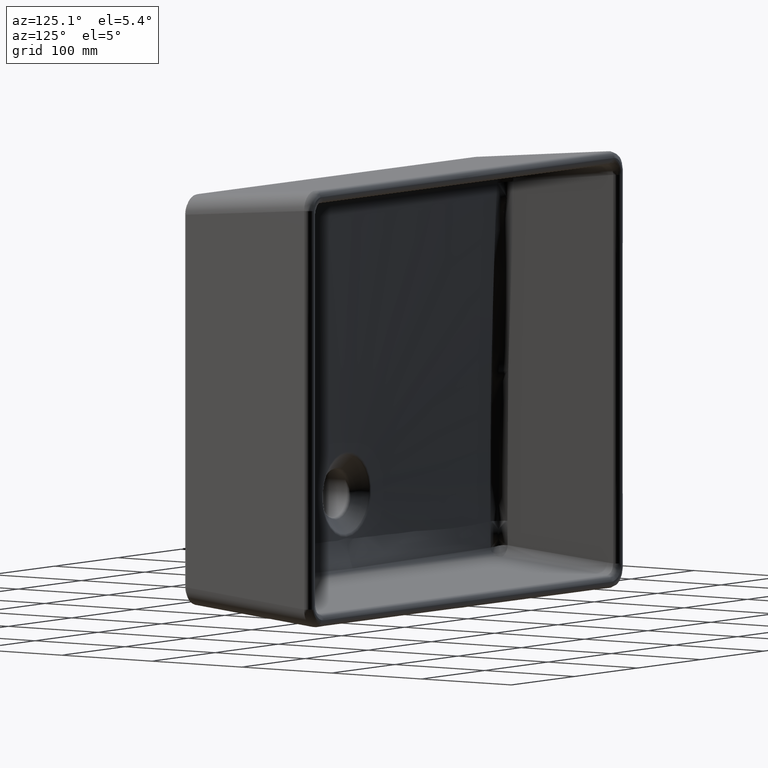
[diagram: clean part render]
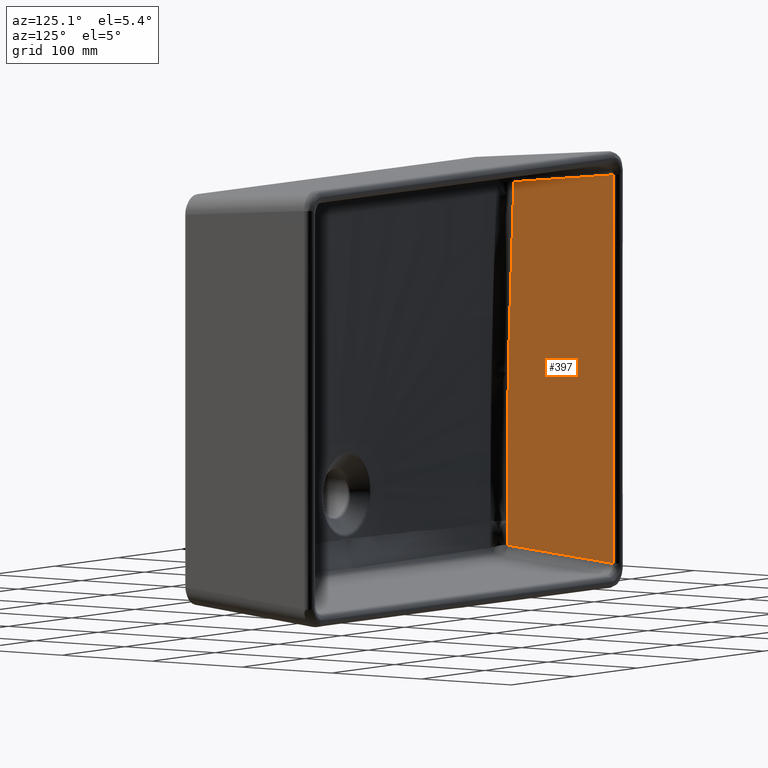
[diagram: same view with one face highlighted and labeled with its STEP entity id]
A machine part, auxiliary view. The second image highlights one B-rep face of the part: STEP entity #397.
In plain terms, the highlighted face is a freeform B-spline surface patch.
Its self-contained STEP definition (entity closure, byte-faithful):
#397=ADVANCED_FACE('',(#541),#514,.F.);
#514=B_SPLINE_SURFACE_WITH_KNOTS('',1,3,((#4361,#4362,#4363,#4364),(#4365,
#4366,#4367,#4368)),.UNSPECIFIED.,.F.,.F.,.F.,(2,2),(4,4),(0.,1.),(0.,1.),
 .UNSPECIFIED.);
#541=FACE_OUTER_BOUND('',#688,.T.);
#688=EDGE_LOOP('',(#1132,#1133,#1134,#1135,#1136));
#880=B_SPLINE_CURVE_WITH_KNOTS('',3,(#4322,#4323,#4324,#4325,#4326,#4327),
 .UNSPECIFIED.,.F.,.F.,(4,2,4),(0.,0.5,1.),.UNSPECIFIED.);
#881=B_SPLINE_CURVE_WITH_KNOTS('',3,(#4330,#4331,#4332,#4333),
 .UNSPECIFIED.,.F.,.F.,(4,4),(0.,1.),.UNSPECIFIED.);
#882=B_SPLINE_CURVE_WITH_KNOTS('',3,(#4335,#4336,#4337,#4338,#4339,#4340,
#4341,#4342,#4343,#4344),.UNSPECIFIED.,.F.,.F.,(4,3,3,4),(0.,0.13280315658952,
0.496102962813358,1.),.UNSPECIFIED.);
#883=B_SPLINE_CURVE_WITH_KNOTS('',3,(#4346,#4347,#4348,#4349),
 .UNSPECIFIED.,.F.,.F.,(4,4),(0.,1.),.UNSPECIFIED.);
#884=B_SPLINE_CURVE_WITH_KNOTS('',3,(#4351,#4352,#4353,#4354,#4355,#4356,
#4357,#4358,#4359,#4360),.UNSPECIFIED.,.F.,.F.,(4,3,3,4),(0.,0.0911524034507979,
0.476822457592374,1.),.UNSPECIFIED.);
#1132=ORIENTED_EDGE('',*,*,#1894,.T.);
#1133=ORIENTED_EDGE('',*,*,#1895,.T.);
#1134=ORIENTED_EDGE('',*,*,#1896,.F.);
#1135=ORIENTED_EDGE('',*,*,#1897,.F.);
#1136=ORIENTED_EDGE('',*,*,#1898,.F.);
#1706=VERTEX_POINT('',#4328);
#1707=VERTEX_POINT('',#4329);
#1708=VERTEX_POINT('',#4334);
#1709=VERTEX_POINT('',#4345);
#1710=VERTEX_POINT('',#4350);
#1894=EDGE_CURVE('',#1706,#1707,#880,.T.);
#1895=EDGE_CURVE('',#1707,#1708,#881,.T.);
#1896=EDGE_CURVE('',#1709,#1708,#882,.T.);
#1897=EDGE_CURVE('',#1710,#1709,#883,.T.);
#1898=EDGE_CURVE('',#1706,#1710,#884,.T.);
#4322=CARTESIAN_POINT('',(-226.472161249242,-107.868702371241,366.5287818084));
#4323=CARTESIAN_POINT('',(-226.244922666756,-109.99502730971,314.852933834062));
#4324=CARTESIAN_POINT('',(-226.039121347856,-111.920758723542,263.16704377465));
#4325=CARTESIAN_POINT('',(-225.76457995688,-114.489707182282,159.761999831791));
#4326=CARTESIAN_POINT('',(-225.707408464432,-115.02467430282,108.041093464687));
#4327=CARTESIAN_POINT('',(-225.761841447418,-114.51533206027,56.3222614560247));
#4328=CARTESIAN_POINT('',(-226.472161249242,-107.868702371242,366.5287818084));
#4329=CARTESIAN_POINT('',(-225.761832600428,-114.51541484364,56.3222606314385));
#4330=CARTESIAN_POINT('',(-225.761823753438,-114.515497627009,56.3222598068523));
#4331=CARTESIAN_POINT('',(-225.769568414853,-114.443029006027,48.9297114935161));
#4332=CARTESIAN_POINT('',(-225.779026028931,-114.354531883517,41.5369551418045));
#4333=CARTESIAN_POINT('',(-225.797325847579,-114.183296170228,34.1460535937557));
#4334=CARTESIAN_POINT('',(-225.797325847579,-114.183296170228,34.1460535937557));
#4335=CARTESIAN_POINT('',(-237.431698736539,-5.31772877554939,22.5116807047915));
#4336=CARTESIAN_POINT('',(-236.916671588341,-10.1369591068569,23.0267078529894));
#4337=CARTESIAN_POINT('',(-236.401644440143,-14.9561894381644,23.5417350011874));
#4338=CARTESIAN_POINT('',(-235.886617291946,-19.7754197694719,24.0567621493853));
#4339=CARTESIAN_POINT('',(-234.47769548658,-32.959032949117,25.4656839547507));
#4340=CARTESIAN_POINT('',(-233.068773681216,-46.1426461287621,26.8746057601161));
#4341=CARTESIAN_POINT('',(-231.65985187585,-59.3262593084071,28.2835275654816));
#4342=CARTESIAN_POINT('',(-229.705676533093,-77.6119382623476,30.2377029082394));
#4343=CARTESIAN_POINT('',(-227.751501190336,-95.8976172162881,32.1918782509974));
#4344=CARTESIAN_POINT('',(-225.797325847579,-114.183296170228,34.1460535937557));
#4345=CARTESIAN_POINT('',(-237.431698736539,-5.31772877554938,22.5116807047917));
#4346=CARTESIAN_POINT('',(-237.431698736558,-5.31772877542872,377.488319296037));
#4347=CARTESIAN_POINT('',(-237.431698736558,-5.31772877606406,259.162773098955));
#4348=CARTESIAN_POINT('',(-237.431698736558,-5.31772877544114,140.837226901873));
#4349=CARTESIAN_POINT('',(-237.431698736558,-5.31772877537343,22.5116807047917));
#4350=CARTESIAN_POINT('',(-237.431698736545,-5.31772877555003,377.488319296037));
#4351=CARTESIAN_POINT('',(-226.472161249242,-107.868702371242,366.5287818084));
#4352=CARTESIAN_POINT('',(-226.805157310134,-104.752779798088,366.86177786932));
#4353=CARTESIAN_POINT('',(-227.138153371027,-101.636857224934,367.194773930238));
#4354=CARTESIAN_POINT('',(-227.471149431919,-98.5209346517799,367.527769991155));
#4355=CARTESIAN_POINT('',(-228.880071237283,-85.3373214721458,368.936691796623));
#4356=CARTESIAN_POINT('',(-230.288993042648,-72.1537082925088,370.345613602063));
#4357=CARTESIAN_POINT('',(-231.697914848013,-58.9700951128687,371.754535407475));
#4358=CARTESIAN_POINT('',(-233.60917614419,-41.0859730004348,373.665796703716));
#4359=CARTESIAN_POINT('',(-235.520437440367,-23.2018508879953,375.577057999904));
#4360=CARTESIAN_POINT('',(-237.431698736545,-5.31772877555003,377.488319296037));
#4361=CARTESIAN_POINT('',(-221.303433067499,-156.233709371131,387.999999999995));
#4362=CARTESIAN_POINT('',(-221.303433067499,-156.233709371131,262.666666666665));
#4363=CARTESIAN_POINT('',(-221.303433067499,-156.233709371131,137.333333333335));
#4364=CARTESIAN_POINT('',(-221.303433067499,-156.233709371131,12.0000000000045));
#4365=CARTESIAN_POINT('',(-237.999999999993,8.70278159880367E-015,387.999999999995));
#4366=CARTESIAN_POINT('',(-237.999999999993,-7.80129999187344E-010,262.666666666665));
#4367=CARTESIAN_POINT('',(-237.999999999993,-3.64417092394571E-011,137.333333333335));
#4368=CARTESIAN_POINT('',(-237.999999999993,4.74697178116564E-015,12.0000000000045));